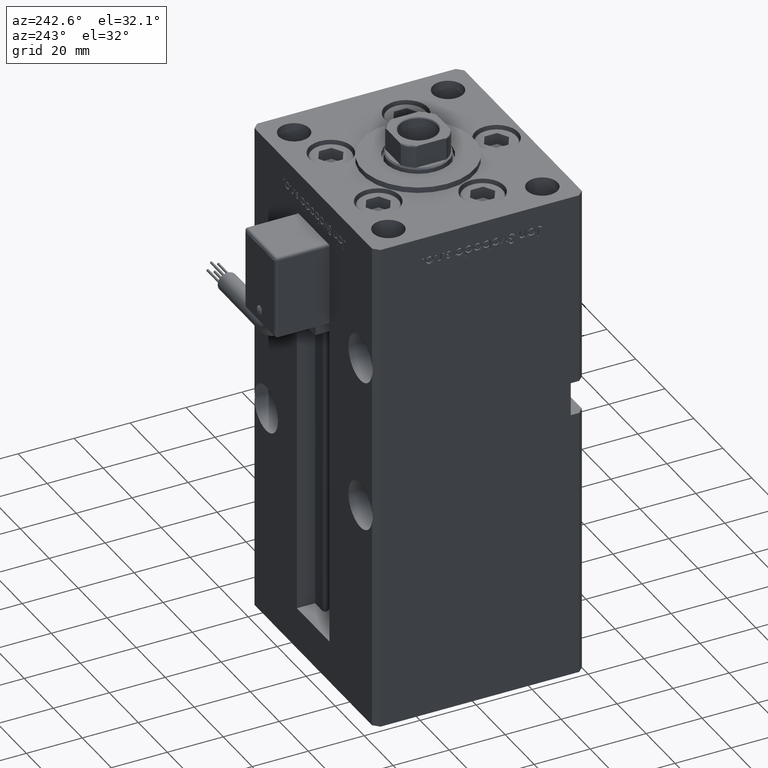
[diagram: clean part render]
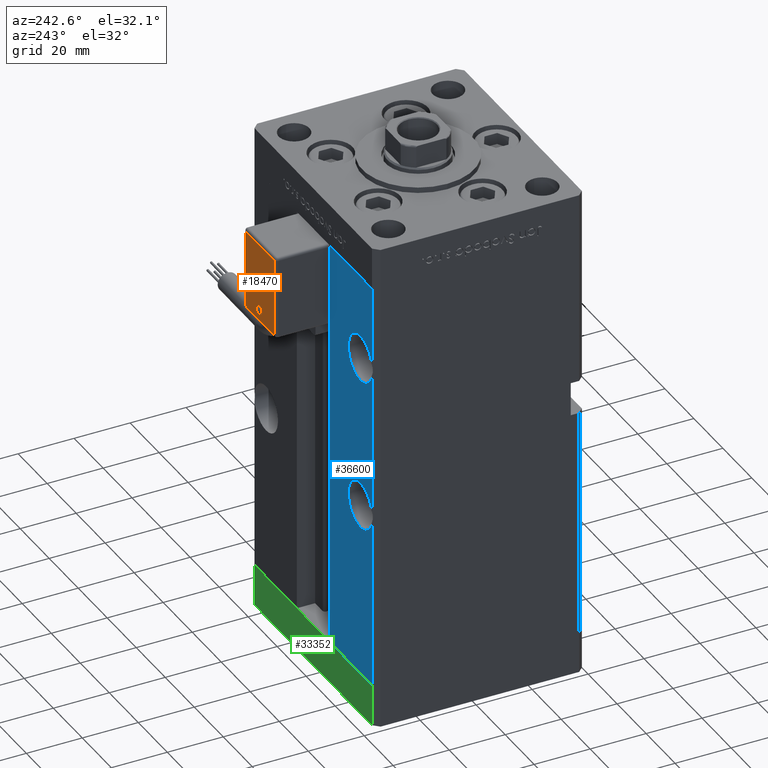
[diagram: same view with three faces highlighted in distinct colors, each labeled with its STEP entity id]
A machine part, auxiliary view with three faces highlighted in distinct colors.
Their STEP definitions:

[orange] entity #18470 — the highlighted planar face has unit normal (0, 1, 0).
#121 = LINE ( 'NONE', #47821, #25059 ) ;
#818 = DIRECTION ( 'NONE',  ( -0.000000000000000000, 1.000000000000000000, 2.478176394252581634E-16 ) ) ;
#1768 = DIRECTION ( 'NONE',  ( 0.000000000000000000, 0.000000000000000000, 1.000000000000000000 ) ) ;
#2183 = EDGE_CURVE ( 'NONE', #16226, #36692, #4707, .T. ) ;
#4420 = EDGE_LOOP ( 'NONE', ( #50972, #9134, #12028, #18873 ) ) ;
#4707 = CIRCLE ( 'NONE', #46414, 1.594260539142210220 ) ;
#6848 = CARTESIAN_POINT ( 'NONE',  ( 1.122044604924999863E-14, 51.60000000000000142, -50.00000000000000000 ) ) ;
#6912 = CARTESIAN_POINT ( 'NONE',  ( 1.122044604924999863E-14, 51.60000000000000142, -50.00000000000000000 ) ) ;
#6973 = LINE ( 'NONE', #7537, #55258 ) ;
#7407 = VECTOR ( 'NONE', #36669, 1000.000000000000000 ) ;
#7537 = CARTESIAN_POINT ( 'NONE',  ( 9.799999999999998934, 51.60000000000000142, -54.00000000000000000 ) ) ;
#8081 = DIRECTION ( 'NONE',  ( 0.000000000000000000, 2.478176394252581634E-16, -1.000000000000000000 ) ) ;
#8876 = DIRECTION ( 'NONE',  ( 0.000000000000000000, -2.478176394252581634E-16, 1.000000000000000000 ) ) ;
#9134 = ORIENTED_EDGE ( 'NONE', *, *, #47626, .T. ) ;
#9332 = PLANE ( 'NONE',  #35135 ) ;
#10052 = CARTESIAN_POINT ( 'NONE',  ( 9.799999999999998934, 51.59999999999999432, -26.00000000000000000 ) ) ;
#11095 = ORIENTED_EDGE ( 'NONE', *, *, #2183, .T. ) ;
#12028 = ORIENTED_EDGE ( 'NONE', *, *, #26844, .T. ) ;
#12298 = VERTEX_POINT ( 'NONE', #10052 ) ;
#13554 = VECTOR ( 'NONE', #8876, 1000.000000000000000 ) ;
#15643 = CARTESIAN_POINT ( 'NONE',  ( -9.799999999999998934, 51.59999999999999432, -26.00000000000000000 ) ) ;
#15928 = LINE ( 'NONE', #15643, #7407 ) ;
#16226 = VERTEX_POINT ( 'NONE', #36001 ) ;
#18131 = DIRECTION ( 'NONE',  ( 0.000000000000000000, -2.478176394252581634E-16, 1.000000000000000000 ) ) ;
#18470 = ADVANCED_FACE ( 'NONE', ( #39430, #48245 ), #9332, .T. ) ;
#18657 = ORIENTED_EDGE ( 'NONE', *, *, #22579, .T. ) ;
#18873 = ORIENTED_EDGE ( 'NONE', *, *, #54620, .T. ) ;
#22389 = CARTESIAN_POINT ( 'NONE',  ( -2.664535259099999904E-33, 51.59999999999998721, 1.277460843040079085E-14 ) ) ;
#22579 = EDGE_CURVE ( 'NONE', #36692, #16226, #34366, .T. ) ;
#24162 = DIRECTION ( 'NONE',  ( 0.000000000000000000, -1.000000000000000000, -2.478176394252581634E-16 ) ) ;
#24250 = CARTESIAN_POINT ( 'NONE',  ( -9.799999999999998934, 51.60000000000000142, -54.00000000000000000 ) ) ;
#24483 = VERTEX_POINT ( 'NONE', #24250 ) ;
#25059 = VECTOR ( 'NONE', #8081, 1000.000000000000000 ) ;
#25333 = EDGE_LOOP ( 'NONE', ( #18657, #11095 ) ) ;
#26844 = EDGE_CURVE ( 'NONE', #51530, #24483, #6973, .T. ) ;
#32688 = EDGE_CURVE ( 'NONE', #52150, #12298, #15928, .T. ) ;
#34366 = CIRCLE ( 'NONE', #41611, 1.594260539142210220 ) ;
#35135 = AXIS2_PLACEMENT_3D ( 'NONE', #22389, #818, #18131 ) ;
#35700 = DIRECTION ( 'NONE',  ( 0.000000000000000000, -1.000000000000000000, -2.478176394252581634E-16 ) ) ;
#36001 = CARTESIAN_POINT ( 'NONE',  ( 1.067120849106190655E-14, 51.60000000000000142, -48.40573946085779511 ) ) ;
#36669 = DIRECTION ( 'NONE',  ( 1.000000000000000000, 0.000000000000000000, 0.000000000000000000 ) ) ;
#36692 = VERTEX_POINT ( 'NONE', #52191 ) ;
#36791 = DIRECTION ( 'NONE',  ( -1.000000000000000000, 0.000000000000000000, 0.000000000000000000 ) ) ;
#38328 = CARTESIAN_POINT ( 'NONE',  ( -9.799999999999998934, 51.59999999999999432, -26.00000000000000000 ) ) ;
#39249 = CARTESIAN_POINT ( 'NONE',  ( -9.799999999999998934, 51.60000000000000142, -54.00000000000000000 ) ) ;
#39430 = FACE_BOUND ( 'NONE', #25333, .T. ) ;
#39528 = LINE ( 'NONE', #39249, #13554 ) ;
#41546 = DIRECTION ( 'NONE',  ( 0.000000000000000000, 0.000000000000000000, 1.000000000000000000 ) ) ;
#41611 = AXIS2_PLACEMENT_3D ( 'NONE', #6912, #35700, #41546 ) ;
#46414 = AXIS2_PLACEMENT_3D ( 'NONE', #6848, #24162, #1768 ) ;
#47626 = EDGE_CURVE ( 'NONE', #12298, #51530, #121, .T. ) ;
#47821 = CARTESIAN_POINT ( 'NONE',  ( 9.799999999999998934, 51.59999999999999432, -26.00000000000000000 ) ) ;
#48245 = FACE_OUTER_BOUND ( 'NONE', #4420, .T. ) ;
#50679 = CARTESIAN_POINT ( 'NONE',  ( 9.799999999999998934, 51.60000000000000142, -54.00000000000000000 ) ) ;
#50972 = ORIENTED_EDGE ( 'NONE', *, *, #32688, .T. ) ;
#51530 = VERTEX_POINT ( 'NONE', #50679 ) ;
#52150 = VERTEX_POINT ( 'NONE', #38328 ) ;
#52191 = CARTESIAN_POINT ( 'NONE',  ( 1.157444300081134802E-14, 51.60000000000000142, -51.59426053914221200 ) ) ;
#54620 = EDGE_CURVE ( 'NONE', #24483, #52150, #39528, .T. ) ;
#55258 = VECTOR ( 'NONE', #36791, 1000.000000000000000 ) ;

[blue] entity #36600 — the highlighted planar face has unit normal (0, -1, 0).
#139 = DIRECTION ( 'NONE',  ( -0.000000000000000000, -0.000000000000000000, -1.000000000000000000 ) ) ;
#506 = ORIENTED_EDGE ( 'NONE', *, *, #22911, .F. ) ;
#712 = DIRECTION ( 'NONE',  ( 0.000000000000000000, 1.000000000000000000, 0.000000000000000000 ) ) ;
#2271 = CARTESIAN_POINT ( 'NONE',  ( -32.50000000000000000, 37.50000000000000000, 118.0000000000000000 ) ) ;
#2897 = CARTESIAN_POINT ( 'NONE',  ( -40.50000000000000711, 37.50000000000000000, 65.01556443707461597 ) ) ;
#3148 = EDGE_CURVE ( 'NONE', #20117, #39278, #35779, .T. ) ;
#3962 = AXIS2_PLACEMENT_3D ( 'NONE', #50786, #11866, #55891 ) ;
#4752 = EDGE_CURVE ( 'NONE', #51356, #45683, #24673, .T. ) ;
#5107 = VECTOR ( 'NONE', #14905, 1000.000000000000000 ) ;
#6032 = ORIENTED_EDGE ( 'NONE', *, *, #3148, .F. ) ;
#6229 = AXIS2_PLACEMENT_3D ( 'NONE', #8528, #17879, #9085 ) ;
#6294 = AXIS2_PLACEMENT_3D ( 'NONE', #23126, #712, #40159 ) ;
#6847 = DIRECTION ( 'NONE',  ( -0.000000000000000000, -0.000000000000000000, -1.000000000000000000 ) ) ;
#7002 = CARTESIAN_POINT ( 'NONE',  ( -11.24999999999999822, 37.50000000000000000, 148.5000000000000000 ) ) ;
#7885 = CIRCLE ( 'NONE', #15129, 8.250000000000007105 ) ;
#8108 = VECTOR ( 'NONE', #6847, 1000.000000000000000 ) ;
#8528 = CARTESIAN_POINT ( 'NONE',  ( -32.50000000000000000, 37.50000000000000000, 118.0000000000000000 ) ) ;
#9085 = DIRECTION ( 'NONE',  ( 0.000000000000000000, 0.000000000000000000, -1.000000000000000000 ) ) ;
#9274 = DIRECTION ( 'NONE',  ( -1.000000000000000000, 0.000000000000000000, 0.000000000000000000 ) ) ;
#9683 = EDGE_CURVE ( 'NONE', #32490, #43253, #21703, .T. ) ;
#10337 = CARTESIAN_POINT ( 'NONE',  ( -11.24999999999999822, 37.50000000000000000, 0.000000000000000000 ) ) ;
#11609 = DIRECTION ( 'NONE',  ( 0.000000000000000000, 1.000000000000000000, -0.000000000000000000 ) ) ;
#11809 = EDGE_CURVE ( 'NONE', #43253, #51356, #53838, .T. ) ;
#11866 = DIRECTION ( 'NONE',  ( 0.000000000000000000, -1.000000000000000000, 0.000000000000000000 ) ) ;
#12187 = VERTEX_POINT ( 'NONE', #35045 ) ;
#14058 = ORIENTED_EDGE ( 'NONE', *, *, #22113, .T. ) ;
#14905 = DIRECTION ( 'NONE',  ( -0.000000000000000000, -0.000000000000000000, -1.000000000000000000 ) ) ;
#15129 = AXIS2_PLACEMENT_3D ( 'NONE', #2271, #11609, #15876 ) ;
#15361 = EDGE_CURVE ( 'NONE', #18496, #36385, #28232, .T. ) ;
#15876 = DIRECTION ( 'NONE',  ( 0.000000000000000000, 0.000000000000000000, -1.000000000000000000 ) ) ;
#16238 = CARTESIAN_POINT ( 'NONE',  ( -32.50000000000000000, 37.50000000000000000, 63.00000000000000000 ) ) ;
#16402 = CARTESIAN_POINT ( 'NONE',  ( -32.50000000000000000, 37.50000000000000000, 63.00000000000000000 ) ) ;
#16454 = CARTESIAN_POINT ( 'NONE',  ( -32.50000000000000000, 37.50000000000000000, 71.25000000000001421 ) ) ;
#17171 = EDGE_CURVE ( 'NONE', #20117, #46357, #38527, .T. ) ;
#17879 = DIRECTION ( 'NONE',  ( 0.000000000000000000, 1.000000000000000000, -0.000000000000000000 ) ) ;
#18280 = VECTOR ( 'NONE', #53107, 1000.000000000000000 ) ;
#18496 = VERTEX_POINT ( 'NONE', #37399 ) ;
#19624 = EDGE_LOOP ( 'NONE', ( #40451, #34481, #38928, #27518, #20675, #14058, #6032, #35680, #506, #40850, #38297, #31614 ) ) ;
#19800 = CIRCLE ( 'NONE', #48840, 8.250000000000007105 ) ;
#20117 = VERTEX_POINT ( 'NONE', #10337 ) ;
#20465 = EDGE_CURVE ( 'NONE', #48864, #12187, #19800, .T. ) ;
#20552 = EDGE_CURVE ( 'NONE', #12187, #32490, #38858, .T. ) ;
#20675 = ORIENTED_EDGE ( 'NONE', *, *, #15361, .F. ) ;
#20937 = DIRECTION ( 'NONE',  ( 0.000000000000000000, 1.000000000000000000, 0.000000000000000000 ) ) ;
#21703 = LINE ( 'NONE', #39034, #49338 ) ;
#22113 = EDGE_CURVE ( 'NONE', #18496, #39278, #34086, .T. ) ;
#22911 = EDGE_CURVE ( 'NONE', #46182, #46357, #32409, .T. ) ;
#23126 = CARTESIAN_POINT ( 'NONE',  ( -32.50000000000000000, 37.50000000000000000, 63.00000000000000000 ) ) ;
#24673 = CIRCLE ( 'NONE', #27395, 8.250000000000007105 ) ;
#25190 = DIRECTION ( 'NONE',  ( 0.000000000000000000, 0.000000000000000000, 1.000000000000000000 ) ) ;
#25484 = FACE_OUTER_BOUND ( 'NONE', #19624, .T. ) ;
#27395 = AXIS2_PLACEMENT_3D ( 'NONE', #16238, #33843, #46629 ) ;
#27518 = ORIENTED_EDGE ( 'NONE', *, *, #48308, .F. ) ;
#27539 = CARTESIAN_POINT ( 'NONE',  ( -40.50000000000000711, 37.50000000000000000, 60.98443556292539114 ) ) ;
#27838 = VECTOR ( 'NONE', #9274, 1000.000000000000000 ) ;
#28232 = LINE ( 'NONE', #46125, #5107 ) ;
#28693 = DIRECTION ( 'NONE',  ( 1.000000000000000000, 0.000000000000000000, 0.000000000000000000 ) ) ;
#30780 = CIRCLE ( 'NONE', #6294, 8.250000000000007105 ) ;
#31614 = ORIENTED_EDGE ( 'NONE', *, *, #11809, .F. ) ;
#32409 = LINE ( 'NONE', #45753, #8108 ) ;
#32490 = VERTEX_POINT ( 'NONE', #42680 ) ;
#32959 = CARTESIAN_POINT ( 'NONE',  ( -11.24999999999999822, 37.50000000000000000, 148.5000000000000000 ) ) ;
#33236 = DIRECTION ( 'NONE',  ( 0.000000000000000000, 1.000000000000000000, -0.000000000000000000 ) ) ;
#33448 = PLANE ( 'NONE',  #3962 ) ;
#33843 = DIRECTION ( 'NONE',  ( 0.000000000000000000, 1.000000000000000000, 0.000000000000000000 ) ) ;
#34086 = LINE ( 'NONE', #32959, #42552 ) ;
#34481 = ORIENTED_EDGE ( 'NONE', *, *, #20552, .F. ) ;
#35045 = CARTESIAN_POINT ( 'NONE',  ( -32.50000000000000000, 37.50000000000000000, 109.7499999999999858 ) ) ;
#35680 = ORIENTED_EDGE ( 'NONE', *, *, #17171, .T. ) ;
#35779 = LINE ( 'NONE', #40034, #18280 ) ;
#36385 = VERTEX_POINT ( 'NONE', #52328 ) ;
#36515 = CARTESIAN_POINT ( 'NONE',  ( -32.50000000000000000, 37.50000000000000000, 54.75000000000000000 ) ) ;
#36600 = ADVANCED_FACE ( 'NONE', ( #25484 ), #33448, .F. ) ;
#36762 = CARTESIAN_POINT ( 'NONE',  ( -32.50000000000000000, 37.50000000000000000, 126.2500000000000000 ) ) ;
#37100 = CARTESIAN_POINT ( 'NONE',  ( -40.50000000000000711, 37.50000000000000000, 0.000000000000000000 ) ) ;
#37399 = CARTESIAN_POINT ( 'NONE',  ( -40.50000000000000711, 37.50000000000000000, 148.5000000000000000 ) ) ;
#38297 = ORIENTED_EDGE ( 'NONE', *, *, #4752, .F. ) ;
#38527 = LINE ( 'NONE', #43064, #27838 ) ;
#38858 = CIRCLE ( 'NONE', #6229, 8.250000000000007105 ) ;
#38928 = ORIENTED_EDGE ( 'NONE', *, *, #20465, .F. ) ;
#39034 = CARTESIAN_POINT ( 'NONE',  ( -40.50000000000000711, 37.50000000000000000, 148.5000000000000000 ) ) ;
#39278 = VERTEX_POINT ( 'NONE', #7002 ) ;
#40034 = CARTESIAN_POINT ( 'NONE',  ( -11.24999999999999822, 37.50000000000000000, 0.000000000000000000 ) ) ;
#40159 = DIRECTION ( 'NONE',  ( 0.000000000000000000, 0.000000000000000000, 1.000000000000000000 ) ) ;
#40451 = ORIENTED_EDGE ( 'NONE', *, *, #9683, .F. ) ;
#40850 = ORIENTED_EDGE ( 'NONE', *, *, #55309, .F. ) ;
#42552 = VECTOR ( 'NONE', #28693, 1000.000000000000000 ) ;
#42680 = CARTESIAN_POINT ( 'NONE',  ( -40.50000000000000711, 37.50000000000000000, 115.9844355629253840 ) ) ;
#43064 = CARTESIAN_POINT ( 'NONE',  ( -11.24999999999999822, 37.50000000000000000, 0.000000000000000000 ) ) ;
#43253 = VERTEX_POINT ( 'NONE', #2897 ) ;
#45683 = VERTEX_POINT ( 'NONE', #36515 ) ;
#45753 = CARTESIAN_POINT ( 'NONE',  ( -40.50000000000000711, 37.50000000000000000, 148.5000000000000000 ) ) ;
#46020 = CARTESIAN_POINT ( 'NONE',  ( -32.50000000000000000, 37.50000000000000000, 118.0000000000000000 ) ) ;
#46125 = CARTESIAN_POINT ( 'NONE',  ( -40.50000000000000711, 37.50000000000000000, 148.5000000000000000 ) ) ;
#46182 = VERTEX_POINT ( 'NONE', #27539 ) ;
#46357 = VERTEX_POINT ( 'NONE', #37100 ) ;
#46629 = DIRECTION ( 'NONE',  ( 0.000000000000000000, 0.000000000000000000, 1.000000000000000000 ) ) ;
#47465 = AXIS2_PLACEMENT_3D ( 'NONE', #16402, #20937, #25190 ) ;
#48308 = EDGE_CURVE ( 'NONE', #36385, #48864, #7885, .T. ) ;
#48840 = AXIS2_PLACEMENT_3D ( 'NONE', #46020, #33236, #51411 ) ;
#48864 = VERTEX_POINT ( 'NONE', #36762 ) ;
#49338 = VECTOR ( 'NONE', #139, 1000.000000000000000 ) ;
#50786 = CARTESIAN_POINT ( 'NONE',  ( -11.24999999999999822, 37.50000000000000000, 148.5000000000000000 ) ) ;
#51356 = VERTEX_POINT ( 'NONE', #16454 ) ;
#51411 = DIRECTION ( 'NONE',  ( 0.000000000000000000, 0.000000000000000000, -1.000000000000000000 ) ) ;
#52328 = CARTESIAN_POINT ( 'NONE',  ( -40.50000000000000711, 37.50000000000000000, 120.0155644370746018 ) ) ;
#53107 = DIRECTION ( 'NONE',  ( -0.000000000000000000, -0.000000000000000000, 1.000000000000000000 ) ) ;
#53838 = CIRCLE ( 'NONE', #47465, 8.250000000000007105 ) ;
#55309 = EDGE_CURVE ( 'NONE', #45683, #46182, #30780, .T. ) ;
#55891 = DIRECTION ( 'NONE',  ( 0.000000000000000000, -0.000000000000000000, -1.000000000000000000 ) ) ;

[green] entity #33352 — the highlighted planar face has unit normal (-0, 1, 0).
#2597 = VECTOR ( 'NONE', #52868, 1000.000000000000000 ) ;
#3388 = LINE ( 'NONE', #47397, #32965 ) ;
#4516 = DIRECTION ( 'NONE',  ( 0.000000000000000000, 0.000000000000000000, 1.000000000000000000 ) ) ;
#6988 = EDGE_CURVE ( 'NONE', #48650, #14138, #8021, .T. ) ;
#8021 = LINE ( 'NONE', #8590, #12078 ) ;
#8590 = CARTESIAN_POINT ( 'NONE',  ( 40.49999999999991473, 37.50000000000000711, 0.000000000000000000 ) ) ;
#9352 = VECTOR ( 'NONE', #15417, 1000.000000000000000 ) ;
#11974 = CARTESIAN_POINT ( 'NONE',  ( 40.49999999999991473, 37.50000000000000711, -15.00000000000000000 ) ) ;
#12078 = VECTOR ( 'NONE', #25053, 1000.000000000000000 ) ;
#12603 = ORIENTED_EDGE ( 'NONE', *, *, #41341, .T. ) ;
#14138 = VERTEX_POINT ( 'NONE', #52213 ) ;
#15417 = DIRECTION ( 'NONE',  ( 0.000000000000000000, 0.000000000000000000, 1.000000000000000000 ) ) ;
#16843 = FACE_OUTER_BOUND ( 'NONE', #26743, .T. ) ;
#18216 = LINE ( 'NONE', #35539, #2597 ) ;
#25053 = DIRECTION ( 'NONE',  ( -1.000000000000000000, -3.426614273534436165E-16, 0.000000000000000000 ) ) ;
#26195 = CARTESIAN_POINT ( 'NONE',  ( 40.49999999999991473, 37.50000000000000711, -15.00000000000000000 ) ) ;
#26743 = EDGE_LOOP ( 'NONE', ( #33573, #50809, #28497, #12603 ) ) ;
#28497 = ORIENTED_EDGE ( 'NONE', *, *, #53031, .T. ) ;
#32965 = VECTOR ( 'NONE', #4516, 1000.000000000000000 ) ;
#33352 = ADVANCED_FACE ( 'NONE', ( #16843 ), #33894, .T. ) ;
#33573 = ORIENTED_EDGE ( 'NONE', *, *, #6988, .F. ) ;
#33894 = PLANE ( 'NONE',  #40072 ) ;
#35539 = CARTESIAN_POINT ( 'NONE',  ( 40.49999999999991473, 37.50000000000000711, -15.00000000000000000 ) ) ;
#36348 = EDGE_CURVE ( 'NONE', #43246, #48650, #45806, .T. ) ;
#38432 = DIRECTION ( 'NONE',  ( -1.000000000000000000, -3.426614273534436165E-16, 0.000000000000000000 ) ) ;
#39863 = CARTESIAN_POINT ( 'NONE',  ( -40.50000000000000711, 37.49999999999997868, -15.00000000000000000 ) ) ;
#40072 = AXIS2_PLACEMENT_3D ( 'NONE', #26195, #47511, #38432 ) ;
#41341 = EDGE_CURVE ( 'NONE', #42925, #14138, #3388, .T. ) ;
#42925 = VERTEX_POINT ( 'NONE', #39863 ) ;
#43246 = VERTEX_POINT ( 'NONE', #11974 ) ;
#45806 = LINE ( 'NONE', #54334, #9352 ) ;
#47397 = CARTESIAN_POINT ( 'NONE',  ( -40.50000000000000711, 37.49999999999997868, -15.00000000000000000 ) ) ;
#47511 = DIRECTION ( 'NONE',  ( -3.426614273534436165E-16, 1.000000000000000000, 0.000000000000000000 ) ) ;
#48650 = VERTEX_POINT ( 'NONE', #53898 ) ;
#50809 = ORIENTED_EDGE ( 'NONE', *, *, #36348, .F. ) ;
#52213 = CARTESIAN_POINT ( 'NONE',  ( -40.50000000000000711, 37.49999999999997868, 0.000000000000000000 ) ) ;
#52868 = DIRECTION ( 'NONE',  ( -1.000000000000000000, -3.426614273534436165E-16, 0.000000000000000000 ) ) ;
#53031 = EDGE_CURVE ( 'NONE', #43246, #42925, #18216, .T. ) ;
#53898 = CARTESIAN_POINT ( 'NONE',  ( 40.49999999999991473, 37.50000000000000711, 0.000000000000000000 ) ) ;
#54334 = CARTESIAN_POINT ( 'NONE',  ( 40.49999999999991473, 37.50000000000000711, -15.00000000000000000 ) ) ;